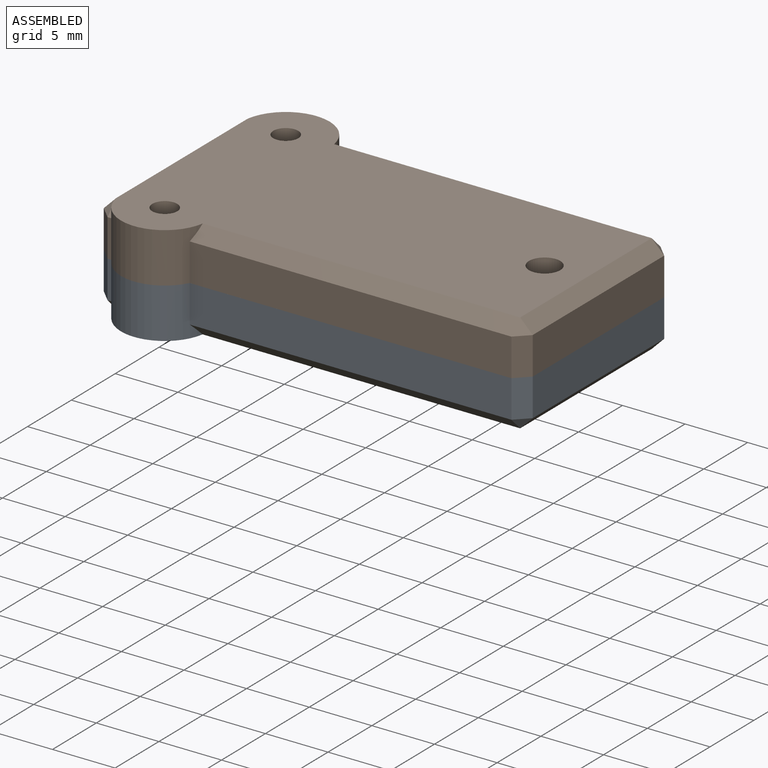
[diagram: assembled view]
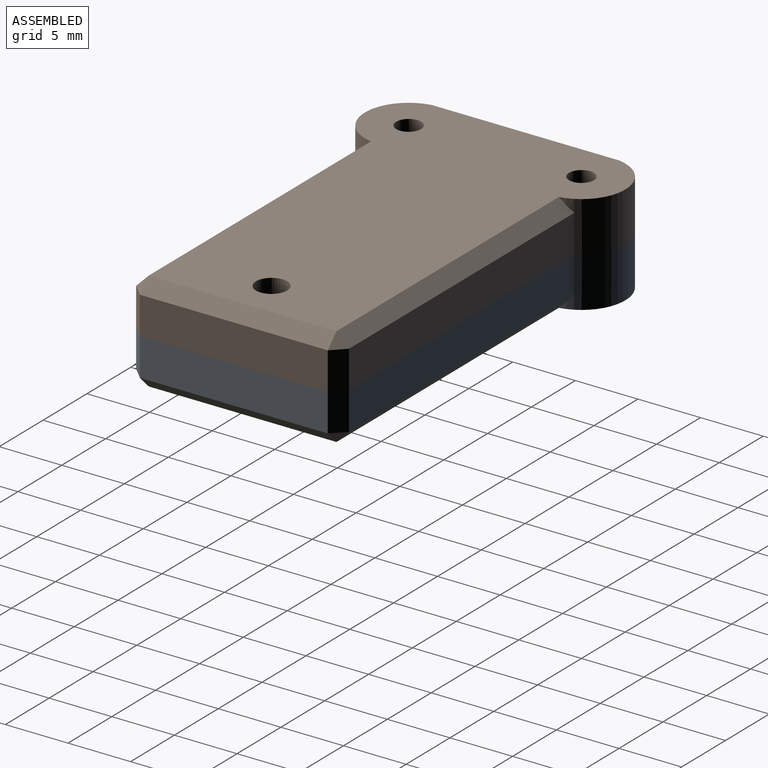
[diagram: assembled view, second angle]
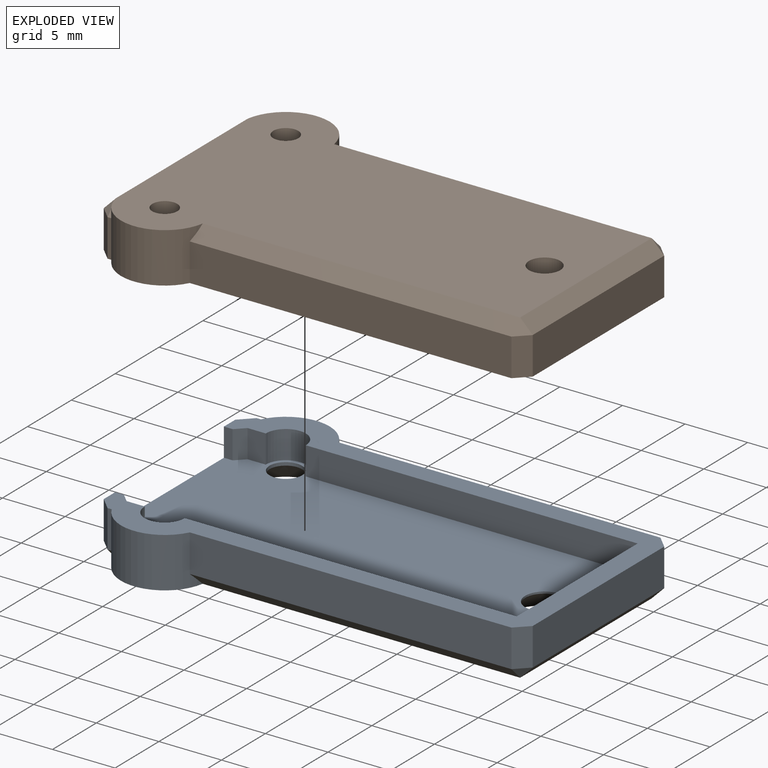
[diagram: exploded view]
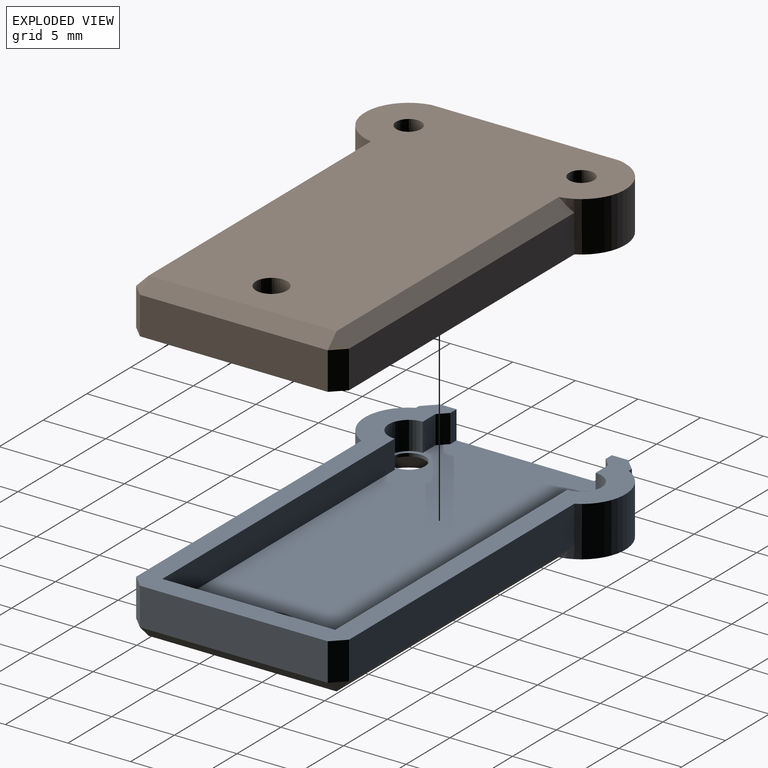
[diagram: exploded view, second angle]
ASSEMBLY  parts=2 mates=3
PART A: 42 faces, bbox 34.3x20.8x4 mm
  f0: plane 15x3mm, normal (-1,0,0), area 17.1mm2, adj f4,f13,f21,f22,f32,f35,f36
  f1: cylinder r=1.3mm len=2.6mm, axis (0,0,-1), area 2mm2, adj f22,f39
  f2: cylinder r=1.55mm len=3.1mm, axis (0,0,-1), area 1.5mm2, adj f22,f41
  f3: cylinder r=1.3mm len=2.6mm, axis (0,0,-1), area 2mm2, adj f22,f40
  f4: plane 34.25x20.8mm, normal (0,0,1), area 141.4mm2, adj f0,f5,f6,f7,f8,f9,f10,f11
  f5: plane 3x0.34mm, normal (0,-1,0), area 1mm2, adj f4,f6,f32,f33
  f6: cylinder r=3.5mm len=6.9mm, axis (0,0,-1), area 31.8mm2, adj f4,f5,f7,f12,f25,f33
  f7: plane 25.69x3mm, normal (0,-1,0), area 77.1mm2, adj f4,f6,f25,f26
  f8: plane 15x3mm, normal (1,0,0), area 45mm2, adj f4,f26,f28,f29
  f9: plane 25.69x3mm, normal (0,1,0), area 77.1mm2, adj f4,f10,f29,f31
  f10: cylinder r=3.5mm len=6.9mm, axis (0,0,-1), area 31.8mm2, adj f4,f9,f11,f12,f31,f38
  f11: plane 3x0.34mm, normal (0,1,0), area 1mm2, adj f4,f10,f35,f38
  f12: plane 32.25x20.8mm, normal (0,0,-1), area 433.4mm2, adj f6,f10,f25,f28,f31,f33,f36,f38
  f13: plane 2.25x0.7mm, normal (0,1,0), area 1.6mm2, adj f0,f4,f22,f23
  f14: plane 2.25x1.45mm, normal (0,1,0), area 3.3mm2, adj f4,f15,f22,f23
  f15: cylinder r=1.6mm len=3.2mm, axis (0,0,1), area 11.3mm2, adj f4,f14,f16,f22
  f16: plane 26.5x2.25mm, normal (0,1,0), area 59.6mm2, adj f4,f15,f17,f22
  f17: plane 13.8x2.25mm, normal (-1,0,0), area 31mm2, adj f4,f16,f18,f22
  f18: plane 26.5x2.25mm, normal (0,-1,0), area 59.6mm2, adj f4,f17,f19,f22
  f19: cylinder r=1.6mm len=3.2mm, axis (0,0,1), area 11.3mm2, adj f4,f18,f20,f22
  f20: plane 2.25x1.45mm, normal (0,-1,0), area 3.3mm2, adj f4,f19,f22,f24
  f21: plane 2.25x0.7mm, normal (0,-1,0), area 1.6mm2, adj f0,f4,f22,f24
  f22: plane 32.55x17mm, normal (0,0,1), area 437.6mm2, adj f0,f1,f2,f3,f13,f14,f15,f16
  f23: plane 2.25x0.7mm, normal (0.71,0.71,0), area 2.2mm2, adj f4,f13,f14,f22
  f24: plane 2.25x0.7mm, normal (0.71,-0.71,0), area 2.2mm2, adj f4,f20,f21,f22
  f25: plane 25.69x1mm, normal (0,-0.71,-0.71), area 36.1mm2, adj f6,f7,f12,f27
  f26: plane 3x1mm, normal (0.71,-0.71,0), area 4.2mm2, adj f4,f7,f8,f27
  f27: plane 1x1mm, normal (0.58,-0.58,-0.58), area 0.9mm2, adj f25,f26,f28
  f28: plane 15x1mm, normal (0.71,0,-0.71), area 21.2mm2, adj f8,f12,f27,f30
  f29: plane 3x1mm, normal (0.71,0.71,0), area 4.2mm2, adj f4,f8,f9,f30
  f30: plane 1x1mm, normal (0.58,0.58,-0.58), area 0.9mm2, adj f28,f29,f31
  f31: plane 25.69x1mm, normal (0,0.71,-0.71), area 36.1mm2, adj f9,f10,f12,f30
  f32: plane 3x1mm, normal (-0.71,-0.71,0), area 4.2mm2, adj f0,f4,f5,f34
  f33: plane 1x1mm, normal (0,-0.71,-0.71), area 0.2mm2, adj f5,f6,f12,f34
  f34: plane 1x1mm, normal (-0.58,-0.58,-0.58), area 0.9mm2, adj f32,f33,f36
  f35: plane 3x1mm, normal (-0.71,0.71,0), area 4.2mm2, adj f0,f4,f11,f37
  f36: plane 15x1mm, normal (-0.71,0,-0.71), area 21.2mm2, adj f0,f12,f34,f37
  f37: plane 1x1mm, normal (-0.58,0.58,-0.58), area 0.9mm2, adj f35,f36,f38
  f38: plane 1x1mm, normal (0,0.71,-0.71), area 0.2mm2, adj f10,f11,f12,f37
  f39: cone r=2.8mm half-angle=45deg, axis (0,0,-1), area 27.3mm2, adj f1,f12
  f40: cone r=1.3mm half-angle=45deg, axis (0,0,-1), area 27.3mm2, adj f3,f12
  f41: cone r=3.15mm half-angle=45deg, axis (0,0,-1), area 33.4mm2, adj f2,f12
PART B: 47 faces, bbox 34.3x20.8x4 mm
  f0: plane 2.25x1.75mm, normal (0,1,0), area 3.7mm2, adj f2,f3,f11,f23,f45,f46
  f1: plane 26.8x2.25mm, normal (0,1,0), area 60.1mm2, adj f2,f3,f6,f11,f45,f46
  f2: plane 32.55x13.8mm, normal (0,0,1), area 421mm2, adj f0,f1,f4,f6,f7,f20,f21,f22
  f3: cylinder r=1.3mm len=2.6mm, axis (0,0,1), area 5.1mm2, adj f0,f1,f11,f46
  f4: plane 26.8x2.25mm, normal (0,-1,0), area 60.1mm2, adj f2,f5,f6,f11,f43,f44
  f5: cylinder r=1.3mm len=2.6mm, axis (0,0,1), area 5.1mm2, adj f4,f11,f21,f44
  f6: plane 13.8x2.25mm, normal (-1,0,0), area 26.6mm2, adj f1,f2,f4,f11,f39,f41,f42
  f7: plane 15x3mm, normal (-1,0,0), area 17.1mm2, adj f2,f11,f20,f22,f32,f35,f36
  f8: cylinder r=1mm len=2.75mm, axis (0,0,-1), area 17.3mm2, adj f19,f44
  f9: cylinder r=1.25mm len=2.75mm, axis (0,0,-1), area 21.6mm2, adj f19,f42
  f10: cylinder r=1mm len=2.75mm, axis (0,0,-1), area 17.3mm2, adj f19,f46
  f11: plane 34.25x20.8mm, normal (0,0,1), area 144.1mm2, adj f0,f1,f3,f4,f5,f6,f7,f12
  f12: plane 3x0.34mm, normal (0,-1,0), area 1mm2, adj f11,f13,f32,f33
  f13: cylinder r=3.5mm len=6.9mm, axis (0,0,-1), area 31.8mm2, adj f11,f12,f14,f19,f25,f33
  f14: plane 25.69x3mm, normal (0,-1,0), area 77.1mm2, adj f11,f13,f25,f26
  f15: plane 15x3mm, normal (1,0,0), area 45mm2, adj f11,f26,f28,f29
  f16: plane 25.69x3mm, normal (0,1,0), area 77.1mm2, adj f11,f17,f29,f31
  f17: cylinder r=3.5mm len=6.9mm, axis (0,0,-1), area 31.8mm2, adj f11,f16,f18,f19,f31,f38
  f18: plane 3x0.34mm, normal (0,1,0), area 1mm2, adj f11,f17,f35,f38
  f19: plane 32.25x20.8mm, normal (0,0,-1), area 502.7mm2, adj f8,f9,f10,f13,f17,f25,f28,f31
  f20: plane 2.25x0.7mm, normal (0,1,0), area 1.6mm2, adj f2,f7,f11,f23
  f21: plane 2.25x1.75mm, normal (0,-1,0), area 3.7mm2, adj f2,f5,f11,f24,f43,f44
  f22: plane 2.25x0.7mm, normal (0,-1,0), area 1.6mm2, adj f2,f7,f11,f24
  f23: plane 2.25x0.7mm, normal (0.71,0.71,0), area 2.2mm2, adj f0,f2,f11,f20
  f24: plane 2.25x0.7mm, normal (0.71,-0.71,0), area 2.2mm2, adj f2,f11,f21,f22
  f25: plane 25.69x1mm, normal (0,-0.71,-0.71), area 36.1mm2, adj f13,f14,f19,f27
  f26: plane 3x1mm, normal (0.71,-0.71,0), area 4.2mm2, adj f11,f14,f15,f27
  f27: plane 1x1mm, normal (0.58,-0.58,-0.58), area 0.9mm2, adj f25,f26,f28
  f28: plane 15x1mm, normal (0.71,0,-0.71), area 21.2mm2, adj f15,f19,f27,f30
  f29: plane 3x1mm, normal (0.71,0.71,0), area 4.2mm2, adj f11,f15,f16,f30
  f30: plane 1x1mm, normal (0.58,0.58,-0.58), area 0.9mm2, adj f28,f29,f31
  f31: plane 25.69x1mm, normal (0,0.71,-0.71), area 36.1mm2, adj f16,f17,f19,f30
  f32: plane 3x1mm, normal (-0.71,-0.71,0), area 4.2mm2, adj f7,f11,f12,f34
  f33: plane 1x1mm, normal (0,-0.71,-0.71), area 0.2mm2, adj f12,f13,f19,f34
  f34: plane 1x1mm, normal (-0.58,-0.58,-0.58), area 0.9mm2, adj f32,f33,f36
  f35: plane 3x1mm, normal (-0.71,0.71,0), area 4.2mm2, adj f7,f11,f18,f37
  f36: plane 15x1mm, normal (-0.71,0,-0.71), area 21.2mm2, adj f7,f19,f34,f37
  f37: plane 1x1mm, normal (-0.58,0.58,-0.58), area 0.9mm2, adj f35,f36,f38
  f38: plane 1x1mm, normal (0,0.71,-0.71), area 0.2mm2, adj f17,f18,f19,f37
  f39: plane 2.6x1mm, normal (0,1,0), area 2.6mm2, adj f2,f6,f40,f42
  f40: cylinder r=2.25mm len=4.5mm, axis (0,0,-1), area 7.1mm2, adj f2,f39,f41,f42
  f41: plane 2.6x1mm, normal (0,-1,0), area 2.6mm2, adj f2,f6,f40,f42
  f42: plane 4.85x4.5mm, normal (0,0,1), area 14.7mm2, adj f6,f9,f39,f40,f41
  f43: cylinder r=1.5mm len=3mm, axis (0,0,-1), area 4.7mm2, adj f2,f4,f21,f44
  f44: plane 3x2.8mm, normal (0,0,1), area 3mm2, adj f4,f5,f8,f21,f43
  f45: cylinder r=1.5mm len=3mm, axis (0,0,-1), area 4.7mm2, adj f0,f1,f2,f46
  f46: plane 3x2.8mm, normal (0,0,1), area 3mm2, adj f0,f1,f3,f10,f45
PLACE A rot(axis=(1,0,0),0deg) t=(1.2,-65.44,18.69)mm
PLACE B rot(axis=(-1,0,0),180deg) t=(1.2,-48.44,26.69)mm
MATE planar B.f3 <-> A.f3  axis (0,0,-1) through (5.65,-50.04,22.69)mm
MATE planar A.f8 <-> B.f15  axis (1,0,0) through (35.45,-56.94,22.69)mm
MATE planar B.f14 <-> A.f9  axis (0,1,0) through (21.61,-48.44,24.19)mm
